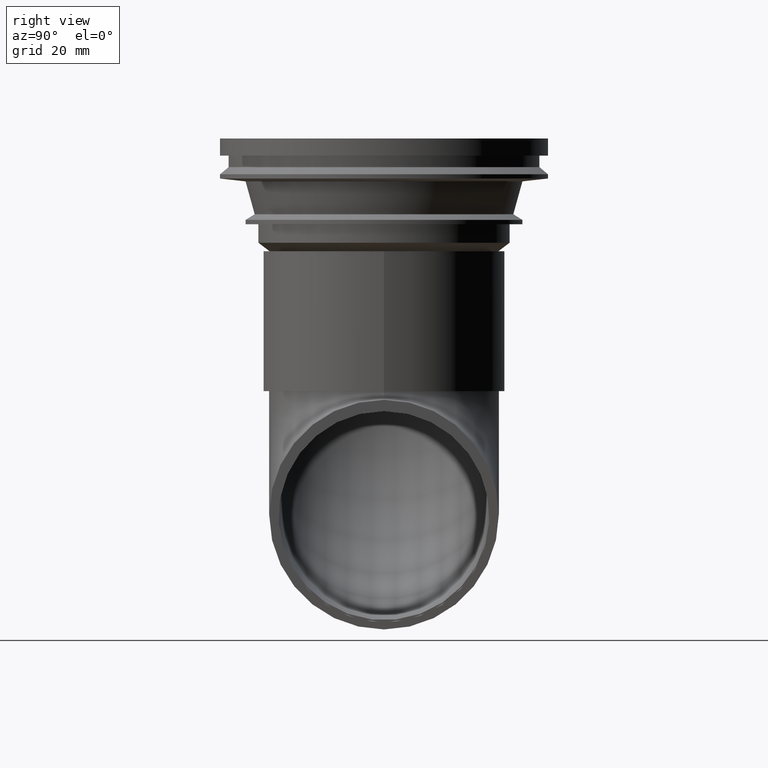
[diagram: clean part render]
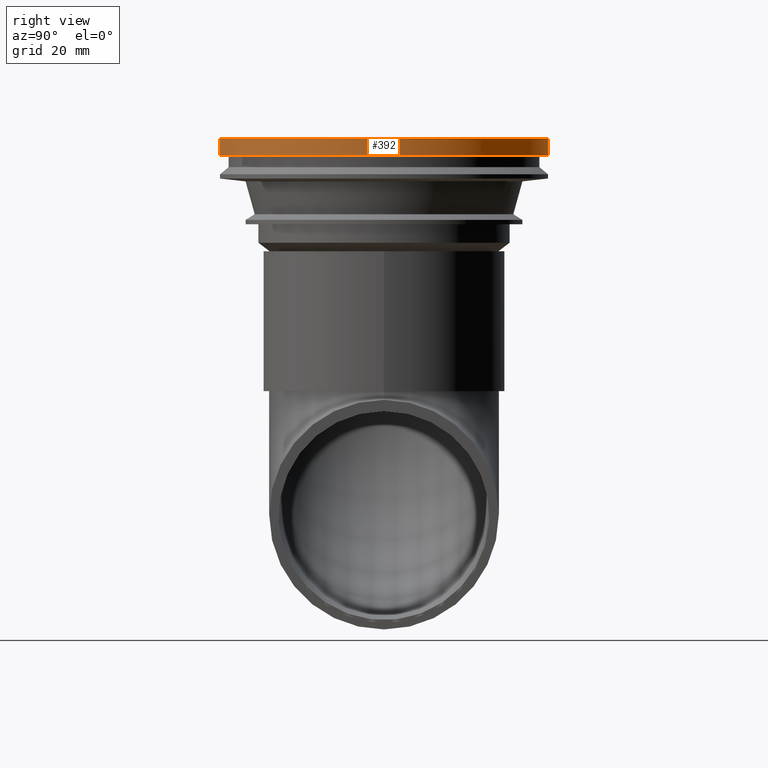
[diagram: same view with one face highlighted and labeled with its STEP entity id]
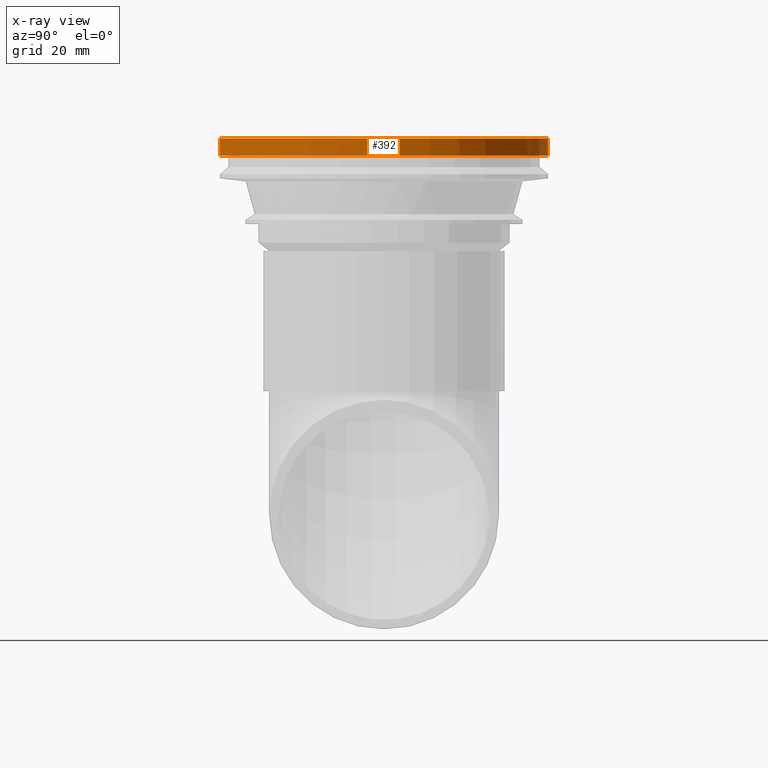
[diagram: x-ray of the same camera — body ghosted, the highlighted face saturated]
A machine part, right view. The second image highlights one B-rep face of the part: STEP entity #392.
The next image is the same camera in x-ray: the body ghosted, the highlighted face saturated — about 0% of this face is hidden behind the body in this view.
In plain terms, the highlighted cylindrical surface (bore or boss wall) has radius 57.5 mm, axis along (0, 0, -1).
Its self-contained STEP definition (entity closure, byte-faithful):
#31=CYLINDRICAL_SURFACE('',#448,57.5);
#48=ORIENTED_EDGE('',*,*,#124,.T.);
#49=ORIENTED_EDGE('',*,*,#122,.F.);
#122=EDGE_CURVE('',#160,#160,#196,.T.);
#124=EDGE_CURVE('',#162,#162,#198,.T.);
#160=VERTEX_POINT('',#679);
#162=VERTEX_POINT('',#684);
#196=CIRCLE('',#446,57.5);
#198=CIRCLE('',#449,57.5);
#235=EDGE_LOOP('',(#48));
#236=EDGE_LOOP('',(#49));
#307=FACE_BOUND('',#235,.T.);
#308=FACE_BOUND('',#236,.T.);
#392=ADVANCED_FACE('',(#307,#308),#31,.T.);
#446=AXIS2_PLACEMENT_3D('',#678,#530,#531);
#448=AXIS2_PLACEMENT_3D('',#682,#534,#535);
#449=AXIS2_PLACEMENT_3D('',#683,#536,#537);
#530=DIRECTION('',(0.,0.,-1.));
#531=DIRECTION('',(-1.,0.,0.));
#534=DIRECTION('',(0.,0.,-1.));
#535=DIRECTION('',(-1.,0.,0.));
#536=DIRECTION('',(0.,0.,-1.));
#537=DIRECTION('',(-1.,0.,0.));
#678=CARTESIAN_POINT('',(0.,0.,-6.));
#679=CARTESIAN_POINT('',(-57.5,0.,-6.));
#682=CARTESIAN_POINT('',(0.,0.,-5.));
#683=CARTESIAN_POINT('',(0.,0.,0.));
#684=CARTESIAN_POINT('',(-57.5,0.,0.));